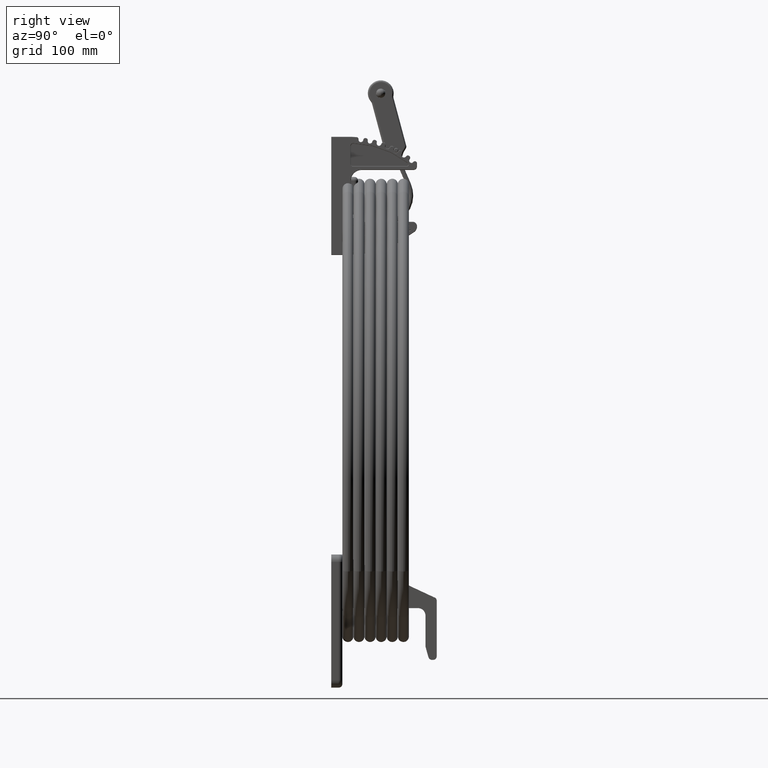
[diagram: clean part render]
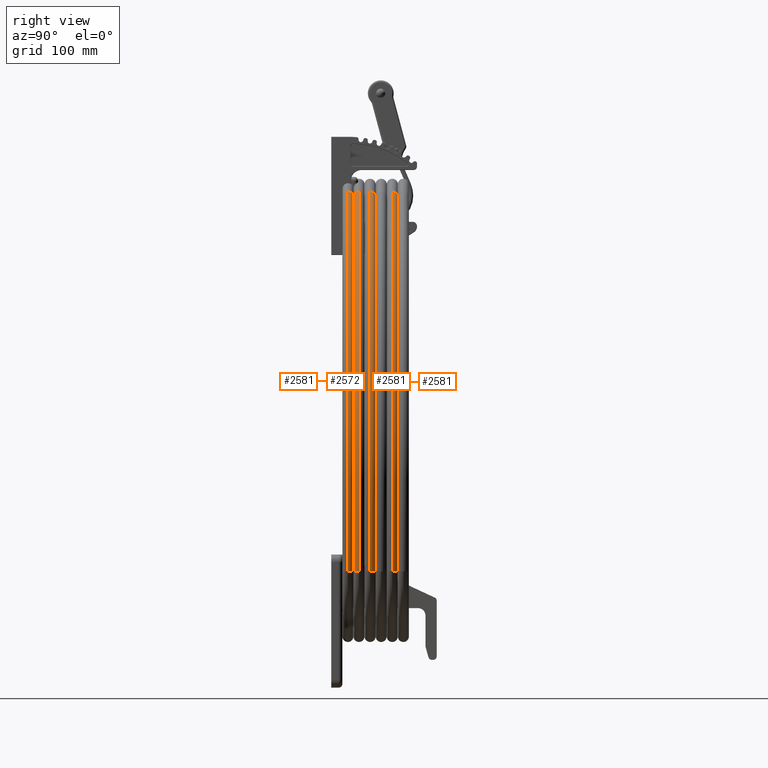
[diagram: same view with one multi-face feature highlighted, each face labeled with its STEP entity id]
A machine part, right view. The highlighted faces form ONE feature: a constant-radius fillet chain: 4 tangent blend faces with common blend radius 4.7625 mm. The faces share edges in the B-rep.
Their STEP definitions:
[1] entity #2581 (Torus):
#1175 = CARTESIAN_POINT ( 'NONE',  ( -5.029258274147675700, -0.5363171817178064000, 0.0000000000000000000 ) ) ;
#1176 = DIRECTION ( 'NONE',  ( -0.0000000000000000000, -0.0000000000000000000, -1.000000000000000000 ) ) ;
#1177 = DIRECTION ( 'NONE',  ( -1.000000000000000000, 0.0000000000000000000, 0.0000000000000000000 ) ) ;
#1185 = CARTESIAN_POINT ( 'NONE',  ( -5.029258274147675700, -0.5363171817178064000, 2.296212748401286200E-017 ) ) ;
#1191 = DIRECTION ( 'NONE',  ( -0.0000000000000000000, -0.0000000000000000000, -1.000000000000000000 ) ) ;
#1192 = DIRECTION ( 'NONE',  ( -1.000000000000000000, 0.0000000000000000000, 0.0000000000000000000 ) ) ;
#1991 = CARTESIAN_POINT ( 'NONE',  ( 6.046631875473303300, 2.557977147131152800, 0.0000000000000000000 ) ) ;
#1994 = CARTESIAN_POINT ( 'NONE',  ( 1.397016187263534000, -10.07324522730103500, 0.0000000000000000000 ) ) ;
#1998 = DIRECTION ( 'NONE',  ( 0.2690690720738033700, -0.9631208825756726300, 0.0000000000000000000 ) ) ;
#1999 = DIRECTION ( 'NONE',  ( 0.0000000000000000000, 0.0000000000000000000, -1.000000000000000000 ) ) ;
#2001 = DIRECTION ( 'NONE',  ( -0.8292980909202252200, -0.5588064749052841200, 0.0000000000000000000 ) ) ;
#2002 = DIRECTION ( 'NONE',  ( 0.0000000000000000000, 0.0000000000000000000, -1.000000000000000000 ) ) ;
#2581 = ADVANCED_FACE ( 'NONE', ( #5795 ), #5792, .T. ) ;
#2735 = CARTESIAN_POINT ( 'NONE',  ( -5.029258274147675700, -0.5363171817178064000, 0.0000000000000000000 ) ) ;
#2739 = DIRECTION ( 'NONE',  ( -0.0000000000000000000, -0.0000000000000000000, -1.000000000000000000 ) ) ;
#2764 = DIRECTION ( 'NONE',  ( -1.000000000000000000, 0.0000000000000000000, 0.0000000000000000000 ) ) ;
#5792 = TOROIDAL_SURFACE ( 'NONE', #8899, 11.50000000000077800, 0.1874999999999999200 ) ;
#5795 = FACE_OUTER_BOUND ( 'NONE', #18279, .T. ) ;
#8899 = AXIS2_PLACEMENT_3D ( 'NONE', #2735, #2739, #2764 ) ;
#9731 = EDGE_CURVE ( 'NONE', #31801, #31894, #29514, .T. ) ;
#9736 = EDGE_CURVE ( 'NONE', #32074, #31765, #29521, .T. ) ;
#9895 = EDGE_CURVE ( 'NONE', #31801, #32074, #19360, .T. ) ;
#9896 = EDGE_CURVE ( 'NONE', #31894, #31765, #30484, .T. ) ;
#15520 = CARTESIAN_POINT ( 'NONE',  ( 1.292239973218793200, -9.917751835253492100, 2.296212748401285900E-017 ) ) ;
#15545 = CARTESIAN_POINT ( 'NONE',  ( 6.227217040956240600, 2.608427598144990700, 0.0000000000000000000 ) ) ;
#15596 = CARTESIAN_POINT ( 'NONE',  ( 1.501792401308274800, -10.22873861934857800, 0.0000000000000000000 ) ) ;
#16857 = CARTESIAN_POINT ( 'NONE',  ( 5.866046709990365000, 2.507526696117315300, 2.296212748401285900E-017 ) ) ;
#18279 = EDGE_LOOP ( 'NONE', ( #28507, #28508, #28509, #28510 ) ) ;
#19360 = CIRCLE ( 'NONE', #28877, 0.1874999999999999200 ) ;
#28507 = ORIENTED_EDGE ( 'NONE', *, *, #9731, .F. ) ;
#28508 = ORIENTED_EDGE ( 'NONE', *, *, #9895, .T. ) ;
#28509 = ORIENTED_EDGE ( 'NONE', *, *, #9736, .T. ) ;
#28510 = ORIENTED_EDGE ( 'NONE', *, *, #9896, .F. ) ;
#28823 = AXIS2_PLACEMENT_3D ( 'NONE', #1175, #1176, #1177 ) ;
#28830 = AXIS2_PLACEMENT_3D ( 'NONE', #1185, #1191, #1192 ) ;
#28877 = AXIS2_PLACEMENT_3D ( 'NONE', #1991, #1998, #1999 ) ;
#28878 = AXIS2_PLACEMENT_3D ( 'NONE', #1994, #2001, #2002 ) ;
#29514 = CIRCLE ( 'NONE', #28823, 11.68750000000077800 ) ;
#29521 = CIRCLE ( 'NONE', #28830, 11.31250000000077600 ) ;
#30484 = CIRCLE ( 'NONE', #28878, 0.1874999999999999200 ) ;
#31765 = VERTEX_POINT ( 'NONE', #15520 ) ;
#31801 = VERTEX_POINT ( 'NONE', #15545 ) ;
#31894 = VERTEX_POINT ( 'NONE', #15596 ) ;
#32074 = VERTEX_POINT ( 'NONE', #16857 ) ;
[2] entity #2572 (Torus):
#1159 = CARTESIAN_POINT ( 'NONE',  ( 6.046631875473303300, 2.557977147131152800, 0.0000000000000000000 ) ) ;
#1173 = DIRECTION ( 'NONE',  ( 0.2690690720738033700, -0.9631208825756726300, 0.0000000000000000000 ) ) ;
#1174 = DIRECTION ( 'NONE',  ( 0.0000000000000000000, 0.0000000000000000000, -1.000000000000000000 ) ) ;
#1175 = CARTESIAN_POINT ( 'NONE',  ( -5.029258274147675700, -0.5363171817178064000, 0.0000000000000000000 ) ) ;
#1176 = DIRECTION ( 'NONE',  ( -0.0000000000000000000, -0.0000000000000000000, -1.000000000000000000 ) ) ;
#1177 = DIRECTION ( 'NONE',  ( -1.000000000000000000, 0.0000000000000000000, 0.0000000000000000000 ) ) ;
#1185 = CARTESIAN_POINT ( 'NONE',  ( -5.029258274147675700, -0.5363171817178064000, 2.296212748401286200E-017 ) ) ;
#1191 = DIRECTION ( 'NONE',  ( -0.0000000000000000000, -0.0000000000000000000, -1.000000000000000000 ) ) ;
#1192 = DIRECTION ( 'NONE',  ( -1.000000000000000000, 0.0000000000000000000, 0.0000000000000000000 ) ) ;
#2572 = ADVANCED_FACE ( 'NONE', ( #5777 ), #5774, .T. ) ;
#2703 = CARTESIAN_POINT ( 'NONE',  ( -5.029258274147675700, -0.5363171817178064000, 0.0000000000000000000 ) ) ;
#2708 = DIRECTION ( 'NONE',  ( -0.0000000000000000000, -0.0000000000000000000, -1.000000000000000000 ) ) ;
#2717 = DIRECTION ( 'NONE',  ( -1.000000000000000000, 0.0000000000000000000, 0.0000000000000000000 ) ) ;
#4972 = EDGE_CURVE ( 'NONE', #31765, #31894, #22338, .T. ) ;
#5369 = AXIS2_PLACEMENT_3D ( 'NONE', #23291, #23292, #23293 ) ;
#5774 = TOROIDAL_SURFACE ( 'NONE', #8866, 11.50000000000077800, 0.1874999999999999200 ) ;
#5777 = FACE_OUTER_BOUND ( 'NONE', #18010, .T. ) ;
#8866 = AXIS2_PLACEMENT_3D ( 'NONE', #2703, #2708, #2717 ) ;
#9730 = EDGE_CURVE ( 'NONE', #32074, #31801, #29513, .T. ) ;
#9731 = EDGE_CURVE ( 'NONE', #31801, #31894, #29514, .T. ) ;
#9736 = EDGE_CURVE ( 'NONE', #32074, #31765, #29521, .T. ) ;
#15520 = CARTESIAN_POINT ( 'NONE',  ( 1.292239973218793200, -9.917751835253492100, 2.296212748401285900E-017 ) ) ;
#15545 = CARTESIAN_POINT ( 'NONE',  ( 6.227217040956240600, 2.608427598144990700, 0.0000000000000000000 ) ) ;
#15596 = CARTESIAN_POINT ( 'NONE',  ( 1.501792401308274800, -10.22873861934857800, 0.0000000000000000000 ) ) ;
#16857 = CARTESIAN_POINT ( 'NONE',  ( 5.866046709990365000, 2.507526696117315300, 2.296212748401285900E-017 ) ) ;
#18010 = EDGE_LOOP ( 'NONE', ( #28471, #28472, #28473, #28474 ) ) ;
#22338 = CIRCLE ( 'NONE', #5369, 0.1874999999999999200 ) ;
#23291 = CARTESIAN_POINT ( 'NONE',  ( 1.397016187263534000, -10.07324522730103500, 0.0000000000000000000 ) ) ;
#23292 = DIRECTION ( 'NONE',  ( -0.8292980909202252200, -0.5588064749052841200, 0.0000000000000000000 ) ) ;
#23293 = DIRECTION ( 'NONE',  ( 0.0000000000000000000, 0.0000000000000000000, -1.000000000000000000 ) ) ;
#28471 = ORIENTED_EDGE ( 'NONE', *, *, #9730, .T. ) ;
#28472 = ORIENTED_EDGE ( 'NONE', *, *, #9731, .T. ) ;
#28473 = ORIENTED_EDGE ( 'NONE', *, *, #4972, .F. ) ;
#28474 = ORIENTED_EDGE ( 'NONE', *, *, #9736, .F. ) ;
#28823 = AXIS2_PLACEMENT_3D ( 'NONE', #1175, #1176, #1177 ) ;
#28824 = AXIS2_PLACEMENT_3D ( 'NONE', #1159, #1173, #1174 ) ;
#28830 = AXIS2_PLACEMENT_3D ( 'NONE', #1185, #1191, #1192 ) ;
#29513 = CIRCLE ( 'NONE', #28824, 0.1874999999999999200 ) ;
#29514 = CIRCLE ( 'NONE', #28823, 11.68750000000077800 ) ;
#29521 = CIRCLE ( 'NONE', #28830, 11.31250000000077600 ) ;
#31765 = VERTEX_POINT ( 'NONE', #15520 ) ;
#31801 = VERTEX_POINT ( 'NONE', #15545 ) ;
#31894 = VERTEX_POINT ( 'NONE', #15596 ) ;
#32074 = VERTEX_POINT ( 'NONE', #16857 ) ;
[3] entity #2581 (Torus):
#1175 = CARTESIAN_POINT ( 'NONE',  ( -5.029258274147675700, -0.5363171817178064000, 0.0000000000000000000 ) ) ;
#1176 = DIRECTION ( 'NONE',  ( -0.0000000000000000000, -0.0000000000000000000, -1.000000000000000000 ) ) ;
#1177 = DIRECTION ( 'NONE',  ( -1.000000000000000000, 0.0000000000000000000, 0.0000000000000000000 ) ) ;
#1185 = CARTESIAN_POINT ( 'NONE',  ( -5.029258274147675700, -0.5363171817178064000, 2.296212748401286200E-017 ) ) ;
#1191 = DIRECTION ( 'NONE',  ( -0.0000000000000000000, -0.0000000000000000000, -1.000000000000000000 ) ) ;
#1192 = DIRECTION ( 'NONE',  ( -1.000000000000000000, 0.0000000000000000000, 0.0000000000000000000 ) ) ;
#1991 = CARTESIAN_POINT ( 'NONE',  ( 6.046631875473303300, 2.557977147131152800, 0.0000000000000000000 ) ) ;
#1994 = CARTESIAN_POINT ( 'NONE',  ( 1.397016187263534000, -10.07324522730103500, 0.0000000000000000000 ) ) ;
#1998 = DIRECTION ( 'NONE',  ( 0.2690690720738033700, -0.9631208825756726300, 0.0000000000000000000 ) ) ;
#1999 = DIRECTION ( 'NONE',  ( 0.0000000000000000000, 0.0000000000000000000, -1.000000000000000000 ) ) ;
#2001 = DIRECTION ( 'NONE',  ( -0.8292980909202252200, -0.5588064749052841200, 0.0000000000000000000 ) ) ;
#2002 = DIRECTION ( 'NONE',  ( 0.0000000000000000000, 0.0000000000000000000, -1.000000000000000000 ) ) ;
#2581 = ADVANCED_FACE ( 'NONE', ( #5795 ), #5792, .T. ) ;
#2735 = CARTESIAN_POINT ( 'NONE',  ( -5.029258274147675700, -0.5363171817178064000, 0.0000000000000000000 ) ) ;
#2739 = DIRECTION ( 'NONE',  ( -0.0000000000000000000, -0.0000000000000000000, -1.000000000000000000 ) ) ;
#2764 = DIRECTION ( 'NONE',  ( -1.000000000000000000, 0.0000000000000000000, 0.0000000000000000000 ) ) ;
#5792 = TOROIDAL_SURFACE ( 'NONE', #8899, 11.50000000000077800, 0.1874999999999999200 ) ;
#5795 = FACE_OUTER_BOUND ( 'NONE', #18279, .T. ) ;
#8899 = AXIS2_PLACEMENT_3D ( 'NONE', #2735, #2739, #2764 ) ;
#9731 = EDGE_CURVE ( 'NONE', #31801, #31894, #29514, .T. ) ;
#9736 = EDGE_CURVE ( 'NONE', #32074, #31765, #29521, .T. ) ;
#9895 = EDGE_CURVE ( 'NONE', #31801, #32074, #19360, .T. ) ;
#9896 = EDGE_CURVE ( 'NONE', #31894, #31765, #30484, .T. ) ;
#15520 = CARTESIAN_POINT ( 'NONE',  ( 1.292239973218793200, -9.917751835253492100, 2.296212748401285900E-017 ) ) ;
#15545 = CARTESIAN_POINT ( 'NONE',  ( 6.227217040956240600, 2.608427598144990700, 0.0000000000000000000 ) ) ;
#15596 = CARTESIAN_POINT ( 'NONE',  ( 1.501792401308274800, -10.22873861934857800, 0.0000000000000000000 ) ) ;
#16857 = CARTESIAN_POINT ( 'NONE',  ( 5.866046709990365000, 2.507526696117315300, 2.296212748401285900E-017 ) ) ;
#18279 = EDGE_LOOP ( 'NONE', ( #28507, #28508, #28509, #28510 ) ) ;
#19360 = CIRCLE ( 'NONE', #28877, 0.1874999999999999200 ) ;
#28507 = ORIENTED_EDGE ( 'NONE', *, *, #9731, .F. ) ;
#28508 = ORIENTED_EDGE ( 'NONE', *, *, #9895, .T. ) ;
#28509 = ORIENTED_EDGE ( 'NONE', *, *, #9736, .T. ) ;
#28510 = ORIENTED_EDGE ( 'NONE', *, *, #9896, .F. ) ;
#28823 = AXIS2_PLACEMENT_3D ( 'NONE', #1175, #1176, #1177 ) ;
#28830 = AXIS2_PLACEMENT_3D ( 'NONE', #1185, #1191, #1192 ) ;
#28877 = AXIS2_PLACEMENT_3D ( 'NONE', #1991, #1998, #1999 ) ;
#28878 = AXIS2_PLACEMENT_3D ( 'NONE', #1994, #2001, #2002 ) ;
#29514 = CIRCLE ( 'NONE', #28823, 11.68750000000077800 ) ;
#29521 = CIRCLE ( 'NONE', #28830, 11.31250000000077600 ) ;
#30484 = CIRCLE ( 'NONE', #28878, 0.1874999999999999200 ) ;
#31765 = VERTEX_POINT ( 'NONE', #15520 ) ;
#31801 = VERTEX_POINT ( 'NONE', #15545 ) ;
#31894 = VERTEX_POINT ( 'NONE', #15596 ) ;
#32074 = VERTEX_POINT ( 'NONE', #16857 ) ;
[4] entity #2581 (Torus):
#1175 = CARTESIAN_POINT ( 'NONE',  ( -5.029258274147675700, -0.5363171817178064000, 0.0000000000000000000 ) ) ;
#1176 = DIRECTION ( 'NONE',  ( -0.0000000000000000000, -0.0000000000000000000, -1.000000000000000000 ) ) ;
#1177 = DIRECTION ( 'NONE',  ( -1.000000000000000000, 0.0000000000000000000, 0.0000000000000000000 ) ) ;
#1185 = CARTESIAN_POINT ( 'NONE',  ( -5.029258274147675700, -0.5363171817178064000, 2.296212748401286200E-017 ) ) ;
#1191 = DIRECTION ( 'NONE',  ( -0.0000000000000000000, -0.0000000000000000000, -1.000000000000000000 ) ) ;
#1192 = DIRECTION ( 'NONE',  ( -1.000000000000000000, 0.0000000000000000000, 0.0000000000000000000 ) ) ;
#1991 = CARTESIAN_POINT ( 'NONE',  ( 6.046631875473303300, 2.557977147131152800, 0.0000000000000000000 ) ) ;
#1994 = CARTESIAN_POINT ( 'NONE',  ( 1.397016187263534000, -10.07324522730103500, 0.0000000000000000000 ) ) ;
#1998 = DIRECTION ( 'NONE',  ( 0.2690690720738033700, -0.9631208825756726300, 0.0000000000000000000 ) ) ;
#1999 = DIRECTION ( 'NONE',  ( 0.0000000000000000000, 0.0000000000000000000, -1.000000000000000000 ) ) ;
#2001 = DIRECTION ( 'NONE',  ( -0.8292980909202252200, -0.5588064749052841200, 0.0000000000000000000 ) ) ;
#2002 = DIRECTION ( 'NONE',  ( 0.0000000000000000000, 0.0000000000000000000, -1.000000000000000000 ) ) ;
#2581 = ADVANCED_FACE ( 'NONE', ( #5795 ), #5792, .T. ) ;
#2735 = CARTESIAN_POINT ( 'NONE',  ( -5.029258274147675700, -0.5363171817178064000, 0.0000000000000000000 ) ) ;
#2739 = DIRECTION ( 'NONE',  ( -0.0000000000000000000, -0.0000000000000000000, -1.000000000000000000 ) ) ;
#2764 = DIRECTION ( 'NONE',  ( -1.000000000000000000, 0.0000000000000000000, 0.0000000000000000000 ) ) ;
#5792 = TOROIDAL_SURFACE ( 'NONE', #8899, 11.50000000000077800, 0.1874999999999999200 ) ;
#5795 = FACE_OUTER_BOUND ( 'NONE', #18279, .T. ) ;
#8899 = AXIS2_PLACEMENT_3D ( 'NONE', #2735, #2739, #2764 ) ;
#9731 = EDGE_CURVE ( 'NONE', #31801, #31894, #29514, .T. ) ;
#9736 = EDGE_CURVE ( 'NONE', #32074, #31765, #29521, .T. ) ;
#9895 = EDGE_CURVE ( 'NONE', #31801, #32074, #19360, .T. ) ;
#9896 = EDGE_CURVE ( 'NONE', #31894, #31765, #30484, .T. ) ;
#15520 = CARTESIAN_POINT ( 'NONE',  ( 1.292239973218793200, -9.917751835253492100, 2.296212748401285900E-017 ) ) ;
#15545 = CARTESIAN_POINT ( 'NONE',  ( 6.227217040956240600, 2.608427598144990700, 0.0000000000000000000 ) ) ;
#15596 = CARTESIAN_POINT ( 'NONE',  ( 1.501792401308274800, -10.22873861934857800, 0.0000000000000000000 ) ) ;
#16857 = CARTESIAN_POINT ( 'NONE',  ( 5.866046709990365000, 2.507526696117315300, 2.296212748401285900E-017 ) ) ;
#18279 = EDGE_LOOP ( 'NONE', ( #28507, #28508, #28509, #28510 ) ) ;
#19360 = CIRCLE ( 'NONE', #28877, 0.1874999999999999200 ) ;
#28507 = ORIENTED_EDGE ( 'NONE', *, *, #9731, .F. ) ;
#28508 = ORIENTED_EDGE ( 'NONE', *, *, #9895, .T. ) ;
#28509 = ORIENTED_EDGE ( 'NONE', *, *, #9736, .T. ) ;
#28510 = ORIENTED_EDGE ( 'NONE', *, *, #9896, .F. ) ;
#28823 = AXIS2_PLACEMENT_3D ( 'NONE', #1175, #1176, #1177 ) ;
#28830 = AXIS2_PLACEMENT_3D ( 'NONE', #1185, #1191, #1192 ) ;
#28877 = AXIS2_PLACEMENT_3D ( 'NONE', #1991, #1998, #1999 ) ;
#28878 = AXIS2_PLACEMENT_3D ( 'NONE', #1994, #2001, #2002 ) ;
#29514 = CIRCLE ( 'NONE', #28823, 11.68750000000077800 ) ;
#29521 = CIRCLE ( 'NONE', #28830, 11.31250000000077600 ) ;
#30484 = CIRCLE ( 'NONE', #28878, 0.1874999999999999200 ) ;
#31765 = VERTEX_POINT ( 'NONE', #15520 ) ;
#31801 = VERTEX_POINT ( 'NONE', #15545 ) ;
#31894 = VERTEX_POINT ( 'NONE', #15596 ) ;
#32074 = VERTEX_POINT ( 'NONE', #16857 ) ;